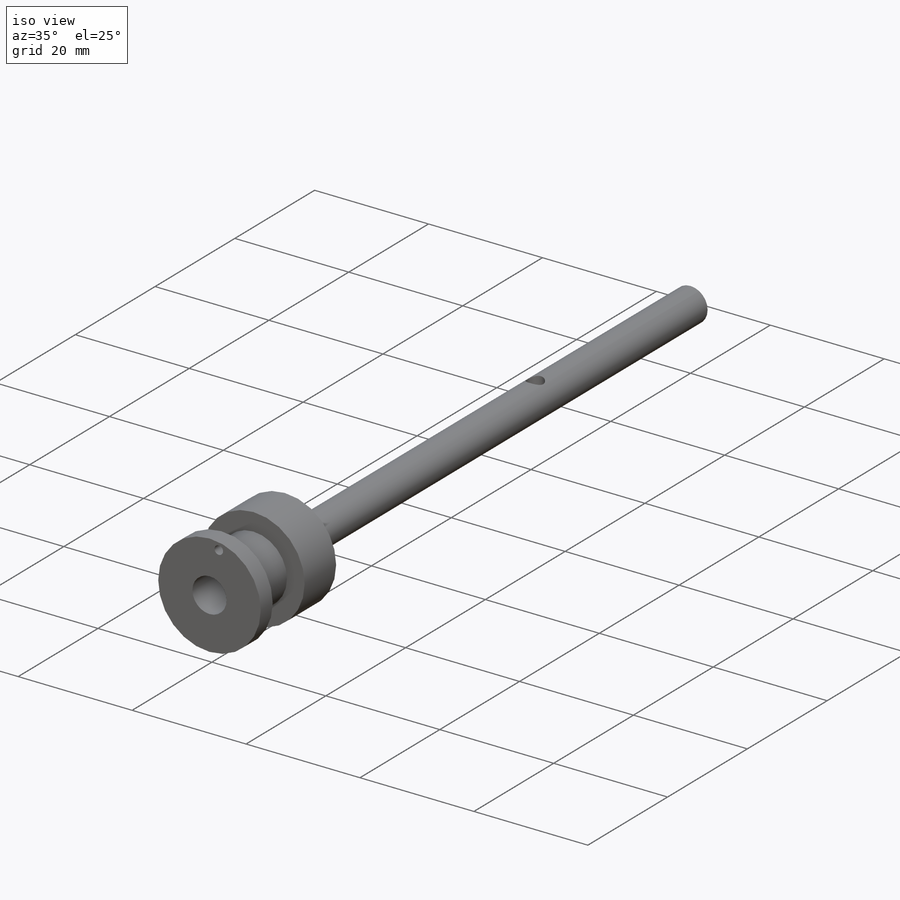
[diagram: iso view]
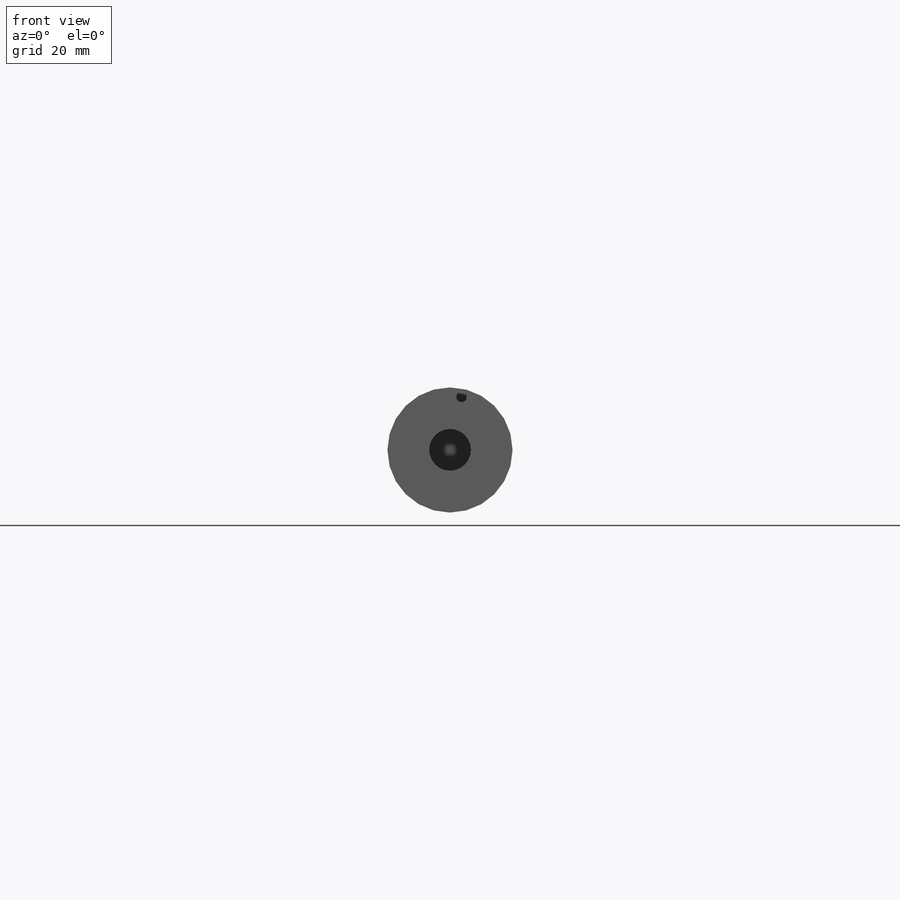
[diagram: front view]
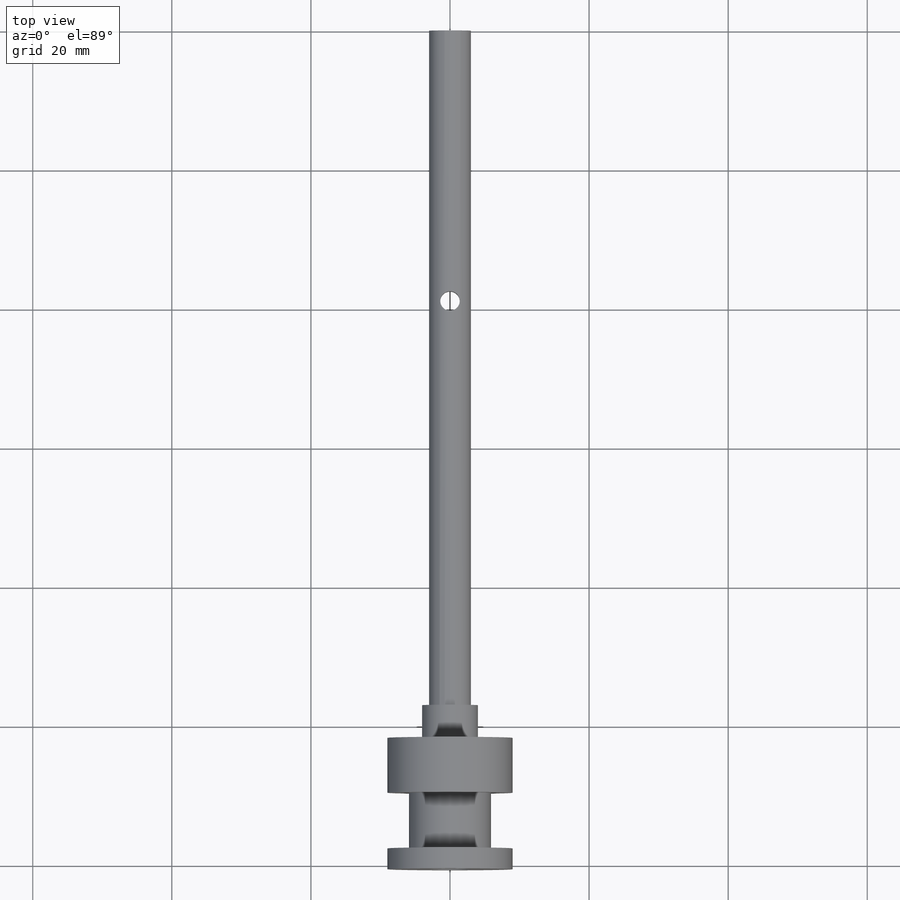
[diagram: top view]
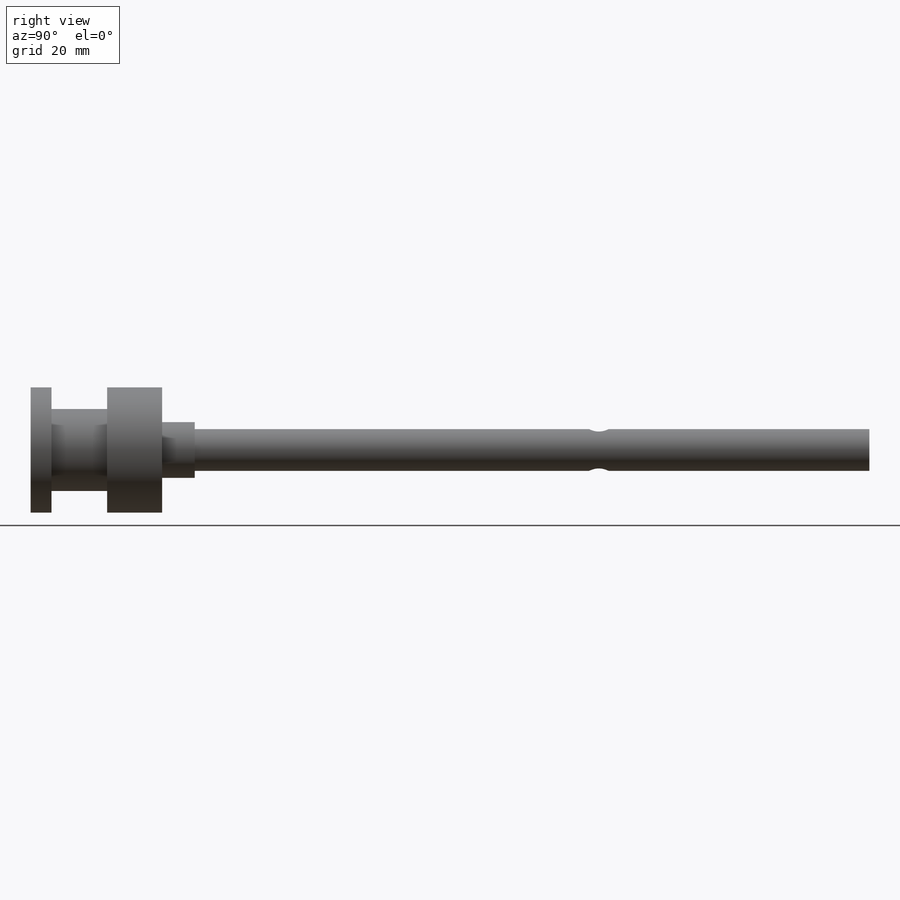
[diagram: right view]
SOLIDWORKS PART (.sldprt)
format: sldprt  version: not decoded by parser v0  size: 189,952 bytes
history: native  units: mm
features: sketch x7, extrude x5, cut_extrude x2, material x1 (+12 scaffold rows collapsed)
feature tree (27):
  scaffold x12  (default folders/planes/origin — collapsed)
  material  "1060 Alloy"
  sketch  "Sketch1"  dims[D1=6.0mm]
  extrude  "Boss-Extrude1"  Depth=97mm
  sketch  "Sketch2"  dims[D1=8.0mm]
  extrude  "Boss-Extrude2"  Depth=4.7mm
  sketch  "Sketch3"  dims[D1=18.0mm]
  extrude  "Boss-Extrude3"  Depth=7.9mm
  sketch  "Sketch4"  dims[D1=11.8mm]
  extrude  "Boss-Extrude4"  Depth=8mm
  sketch  "Sketch5"  dims[D1=18.0mm]
  extrude  "Boss-Extrude5"  Depth=3mm
  sketch  "Sketch6"  dims[c1.D2=2.8mm c1.D1=38.9mm c2.D2=~10.872904mm]
  cut_extrude  "Cut-Extrude1"  Depth=82mm
  sketch  "Sketch7"  dims[D1=6.0mm D2=1.5mm]
  cut_extrude  "Cut-Extrude2"  Depth=9mm
decode coverage: 14 of 14 modeling features carry decoded parameters
note: ~ marks probable driven/reference dimensions
note: suppression state not decoded; provenance and decode notes live in map.json
